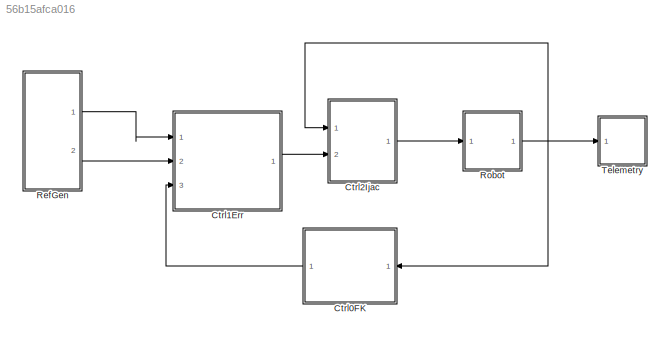
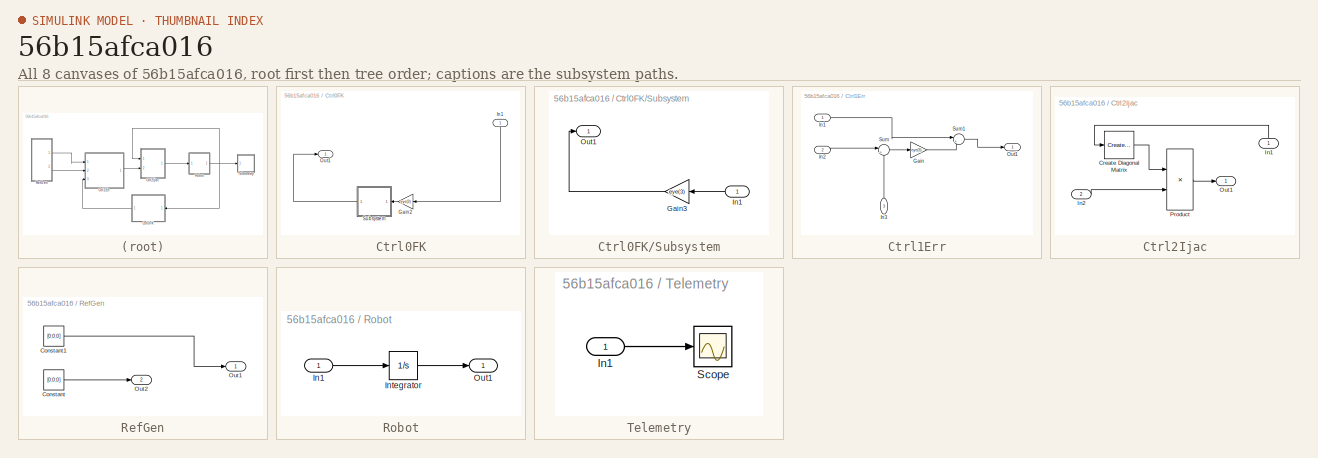
[diagram: thumbnail index - all 8 canvases of the model, root first then tree order]
MODEL slx_56b15afca016
KIND model
BLOCK [SubSystem] Ctrl0FK
  Ports = [1, 1]
  RequestExecContextInheritance = off
BLOCK [Gain] Ctrl0FK/Gain2
  Gain = eye(3)
  Multiplication = Matrix(K*u) (u vector)
  OutDataTypeStr = Inherit: Inherit via internal rule
  ParamDataTypeStr = Inherit: Inherit via internal rule
  SaturateOnIntegerOverflow = off
BLOCK [Inport] Ctrl0FK/In1
  IconDisplay = Port number
BLOCK [Outport] Ctrl0FK/Out1
  IconDisplay = Port number
BLOCK [SubSystem] Ctrl0FK/Subsystem
  Ports = [1, 1]
  RequestExecContextInheritance = off
BLOCK [Gain] Ctrl0FK/Subsystem/Gain3
  Gain = eye(3)
  Multiplication = Matrix(K*u) (u vector)
  OutDataTypeStr = Inherit: Inherit via internal rule
  ParamDataTypeStr = Inherit: Inherit via internal rule
  SaturateOnIntegerOverflow = off
BLOCK [Inport] Ctrl0FK/Subsystem/In1
  IconDisplay = Port number
BLOCK [Outport] Ctrl0FK/Subsystem/Out1
  IconDisplay = Port number
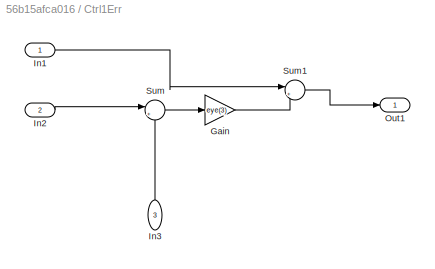
BLOCK [SubSystem] Ctrl1Err
  Ports = [3, 1]
  RequestExecContextInheritance = off
BLOCK [Gain] Ctrl1Err/Gain
  Gain = eye(3)
  Multiplication = Matrix(K*u) (u vector)
  OutDataTypeStr = Inherit: Inherit via internal rule
  ParamDataTypeStr = Inherit: Inherit via internal rule
  SaturateOnIntegerOverflow = off
BLOCK [Inport] Ctrl1Err/In1
  IconDisplay = Port number
BLOCK [Inport] Ctrl1Err/In2
  IconDisplay = Port number
  Port = 2
BLOCK [Inport] Ctrl1Err/In3
  IconDisplay = Port number
  Port = 3
BLOCK [Outport] Ctrl1Err/Out1
  IconDisplay = Port number
BLOCK [Sum] Ctrl1Err/Sum
  IconShape = round
  InputSameDT = off
  Inputs = |+-
  OutDataTypeStr = Inherit: Inherit via internal rule
  Ports = [2, 1]
  SaturateOnIntegerOverflow = off
BLOCK [Sum] Ctrl1Err/Sum1
  IconShape = round
  InputSameDT = off
  Inputs = |++
  OutDataTypeStr = Inherit: Inherit via internal rule
  Ports = [2, 1]
  SaturateOnIntegerOverflow = off
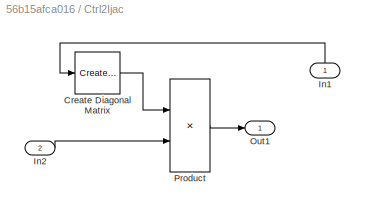
BLOCK [SubSystem] Ctrl2Ijac
  Ports = [2, 1]
  RequestExecContextInheritance = off
BLOCK [Reference] Ctrl2Ijac/Create Diagonal Matrix  REF=dspmtrx3/Create Diagonal
Matrix
  Ports = [1, 1]
  SourceBlock = dspmtrx3/Create Diagonal\nMatrix
  SourceType = Create Diagonal Matrix
BLOCK [Inport] Ctrl2Ijac/In1
  IconDisplay = Port number
  SampleTime = 0.01
BLOCK [Inport] Ctrl2Ijac/In2
  IconDisplay = Port number
  Port = 2
  SampleTime = 0.01
BLOCK [Outport] Ctrl2Ijac/Out1
  IconDisplay = Port number
BLOCK [Product] Ctrl2Ijac/Product
  InputSameDT = off
  Multiplication = Matrix(*)
  OutDataTypeStr = Inherit: Inherit via internal rule
  Ports = [2, 1]
  RndMeth = Floor
  SampleTime = 0.01
  SaturateOnIntegerOverflow = off
BLOCK [SubSystem] RefGen
  Ports = [0, 2]
  RequestExecContextInheritance = off
BLOCK [Constant] RefGen/Constant
  Value = [0;0;0]
BLOCK [Constant] RefGen/Constant1
  Value = [0;0;0]
BLOCK [Outport] RefGen/Out1
  IconDisplay = Port number
BLOCK [Outport] RefGen/Out2
  IconDisplay = Port number
  Port = 2
BLOCK [SubSystem] Robot
  Ports = [1, 1]
  RequestExecContextInheritance = off
  Tag = plant
BLOCK [Inport] Robot/In1
  IconDisplay = Port number
BLOCK [Integrator] Robot/Integrator
  InitialCondition = [0;0;0]
  Ports = [1, 1]
BLOCK [Outport] Robot/Out1
  IconDisplay = Port number
BLOCK [SubSystem] Telemetry
  Ports = [1]
  RequestExecContextInheritance = off
  Tag = monitoring
BLOCK [Inport] Telemetry/In1
  IconDisplay = Port number
BLOCK [Scope] Telemetry/Scope
  Floating = off
  NumInputPorts = 1
  Ports = [1]
  ShowLegends = off
LINE Ctrl0FK/Gain2:1 -> Ctrl0FK/Subsystem:1
LINE Ctrl0FK/In1:1 -> Ctrl0FK/Gain2:1
LINE Ctrl0FK/Subsystem/Gain3:1 -> Ctrl0FK/Subsystem/Out1:1
LINE Ctrl0FK/Subsystem/In1:1 -> Ctrl0FK/Subsystem/Gain3:1
LINE Ctrl0FK/Subsystem:1 -> Ctrl0FK/Out1:1
LINE Ctrl0FK:1 -> Ctrl1Err:3
LINE Ctrl1Err/Gain:1 -> Ctrl1Err/Sum1:2
LINE Ctrl1Err/In1:1 -> Ctrl1Err/Sum1:1
LINE Ctrl1Err/In2:1 -> Ctrl1Err/Sum:1
LINE Ctrl1Err/In3:1 -> Ctrl1Err/Sum:2
LINE Ctrl1Err/Sum1:1 -> Ctrl1Err/Out1:1
LINE Ctrl1Err/Sum:1 -> Ctrl1Err/Gain:1
LINE Ctrl1Err:1 -> Ctrl2Ijac:2
LINE Ctrl2Ijac/Create Diagonal Matrix:1 -> Ctrl2Ijac/Product:1
LINE Ctrl2Ijac/In1:1 -> Ctrl2Ijac/Create Diagonal Matrix:1
LINE Ctrl2Ijac/In2:1 -> Ctrl2Ijac/Product:2
LINE Ctrl2Ijac/Product:1 -> Ctrl2Ijac/Out1:1
LINE Ctrl2Ijac:1 -> Robot:1
LINE RefGen/Constant1:1 -> RefGen/Out1:1
LINE RefGen/Constant:1 -> RefGen/Out2:1
LINE RefGen:1 -> Ctrl1Err:1
LINE RefGen:2 -> Ctrl1Err:2
LINE Robot/In1:1 -> Robot/Integrator:1
LINE Robot/Integrator:1 -> Robot/Out1:1
NET Robot:1 -> Ctrl0FK:1, Ctrl2Ijac:1, Telemetry:1
LINE Telemetry/In1:1 -> Telemetry/Scope:1
note: NET lines group one-source signal fan-out (src -> all destinations, sorted); 1:1 wires keep LINE
